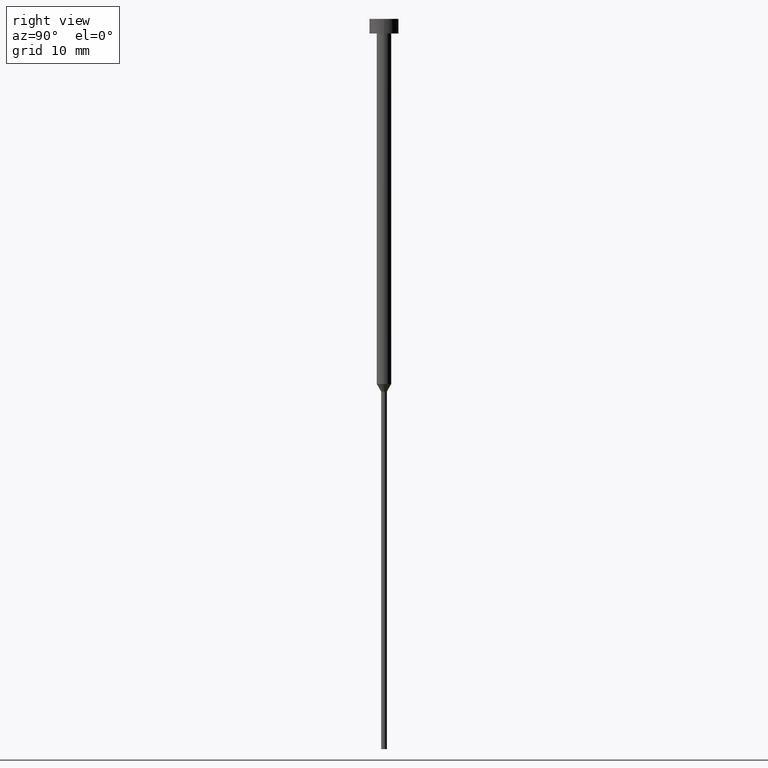
[diagram: clean part render]
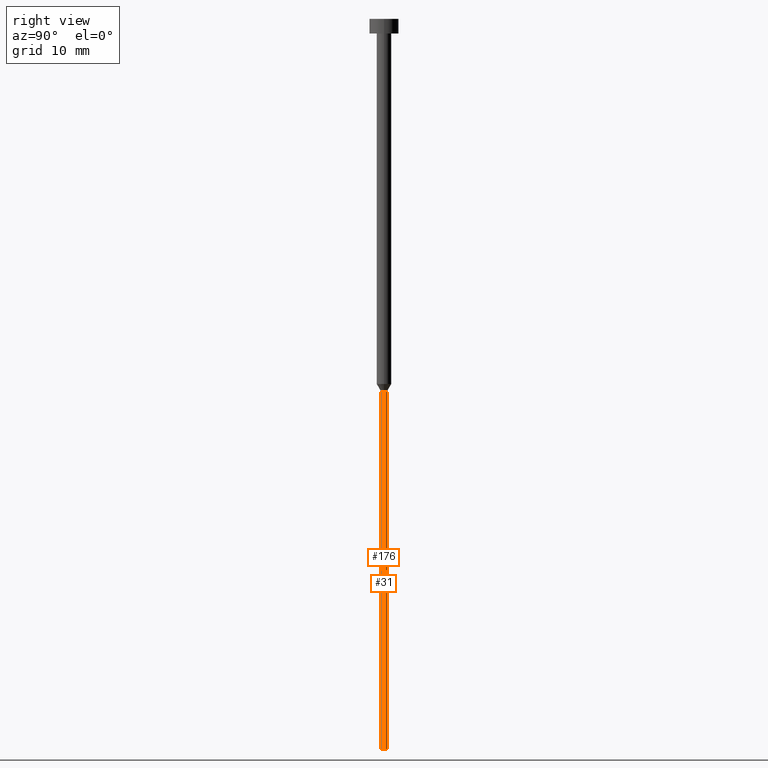
[diagram: same view with one multi-face feature highlighted, each face labeled with its STEP entity id]
A machine part, right view. The highlighted faces form ONE feature: a constant-radius fillet chain: 2 tangent blend faces with common blend radius 0.4 mm. The faces share edges in the B-rep.
Their STEP definitions:
[1] entity #31 (Cylinder):
#2 = ORIENTED_EDGE ( 'NONE', *, *, #65, .F. ) ;
#5 = DIRECTION ( 'NONE',  ( 1.000000000000000000, 0.000000000000000000, 0.000000000000000000 ) ) ;
#30 = EDGE_CURVE ( 'NONE', #311, #168, #203, .T. ) ;
#31 = ADVANCED_FACE ( 'NONE', ( #100 ), #124, .T. ) ;
#44 = DIRECTION ( 'NONE',  ( -0.000000000000000000, -0.000000000000000000, 1.000000000000000000 ) ) ;
#50 = DIRECTION ( 'NONE',  ( 1.000000000000000000, 0.000000000000000000, 0.000000000000000000 ) ) ;
#65 = EDGE_CURVE ( 'NONE', #86, #355, #130, .T. ) ;
#68 = AXIS2_PLACEMENT_3D ( 'NONE', #346, #139, #50 ) ;
#69 = CARTESIAN_POINT ( 'NONE',  ( 0.000000000000000000, 0.000000000000000000, -51.03923048454132783 ) ) ;
#73 = CARTESIAN_POINT ( 'NONE',  ( 0.000000000000000000, 0.000000000000000000, 0.000000000000000000 ) ) ;
#86 = VERTEX_POINT ( 'NONE', #350 ) ;
#100 = FACE_OUTER_BOUND ( 'NONE', #276, .T. ) ;
#111 = CIRCLE ( 'NONE', #68, 0.4000000000000000222 ) ;
#116 = VECTOR ( 'NONE', #208, 1000.000000000000000 ) ;
#124 = CYLINDRICAL_SURFACE ( 'NONE', #338, 0.3999999999999999667 ) ;
#130 = LINE ( 'NONE', #235, #116 ) ;
#139 = DIRECTION ( 'NONE',  ( -0.000000000000000000, -0.000000000000000000, 1.000000000000000000 ) ) ;
#168 = VERTEX_POINT ( 'NONE', #212 ) ;
#173 = ORIENTED_EDGE ( 'NONE', *, *, #249, .T. ) ;
#174 = CARTESIAN_POINT ( 'NONE',  ( 0.3999999999999999667, 0.000000000000000000, -51.03923048454132783 ) ) ;
#175 = DIRECTION ( 'NONE',  ( -0.000000000000000000, -0.000000000000000000, 1.000000000000000000 ) ) ;
#197 = ORIENTED_EDGE ( 'NONE', *, *, #322, .F. ) ;
#200 = DIRECTION ( 'NONE',  ( 1.000000000000000000, 0.000000000000000000, 0.000000000000000000 ) ) ;
#203 = LINE ( 'NONE', #256, #326 ) ;
#206 = CIRCLE ( 'NONE', #210, 0.3999999999999999667 ) ;
#208 = DIRECTION ( 'NONE',  ( -0.000000000000000000, -0.000000000000000000, 1.000000000000000000 ) ) ;
#210 = AXIS2_PLACEMENT_3D ( 'NONE', #69, #44, #5 ) ;
#212 = CARTESIAN_POINT ( 'NONE',  ( -0.3999999999999999667, 4.898587196589412459E-17, -51.03923048454132783 ) ) ;
#223 = CARTESIAN_POINT ( 'NONE',  ( -0.4000000000000000777, 4.898587196589413692E-17, -100.0000000000000000 ) ) ;
#235 = CARTESIAN_POINT ( 'NONE',  ( 0.3999999999999999667, 0.000000000000000000, 0.000000000000000000 ) ) ;
#249 = EDGE_CURVE ( 'NONE', #86, #311, #111, .T. ) ;
#256 = CARTESIAN_POINT ( 'NONE',  ( -0.3999999999999999667, 4.898587196589412459E-17, 0.000000000000000000 ) ) ;
#276 = EDGE_LOOP ( 'NONE', ( #173, #328, #197, #2 ) ) ;
#282 = DIRECTION ( 'NONE',  ( -0.000000000000000000, -0.000000000000000000, 1.000000000000000000 ) ) ;
#311 = VERTEX_POINT ( 'NONE', #223 ) ;
#322 = EDGE_CURVE ( 'NONE', #355, #168, #206, .T. ) ;
#326 = VECTOR ( 'NONE', #282, 1000.000000000000000 ) ;
#328 = ORIENTED_EDGE ( 'NONE', *, *, #30, .T. ) ;
#338 = AXIS2_PLACEMENT_3D ( 'NONE', #73, #175, #200 ) ;
#346 = CARTESIAN_POINT ( 'NONE',  ( 0.000000000000000000, 0.000000000000000000, -100.0000000000000000 ) ) ;
#350 = CARTESIAN_POINT ( 'NONE',  ( 0.4000000000000000222, 0.000000000000000000, -100.0000000000000000 ) ) ;
#355 = VERTEX_POINT ( 'NONE', #174 ) ;
[2] entity #176 (Cylinder):
#6 = ORIENTED_EDGE ( 'NONE', *, *, #65, .T. ) ;
#26 = ORIENTED_EDGE ( 'NONE', *, *, #258, .F. ) ;
#30 = EDGE_CURVE ( 'NONE', #311, #168, #203, .T. ) ;
#62 = EDGE_CURVE ( 'NONE', #311, #86, #294, .T. ) ;
#65 = EDGE_CURVE ( 'NONE', #86, #355, #130, .T. ) ;
#86 = VERTEX_POINT ( 'NONE', #350 ) ;
#114 = ORIENTED_EDGE ( 'NONE', *, *, #30, .F. ) ;
#116 = VECTOR ( 'NONE', #208, 1000.000000000000000 ) ;
#119 = EDGE_LOOP ( 'NONE', ( #114, #202, #6, #26 ) ) ;
#127 = CYLINDRICAL_SURFACE ( 'NONE', #342, 0.3999999999999999667 ) ;
#130 = LINE ( 'NONE', #235, #116 ) ;
#160 = DIRECTION ( 'NONE',  ( 1.000000000000000000, 0.000000000000000000, 0.000000000000000000 ) ) ;
#168 = VERTEX_POINT ( 'NONE', #212 ) ;
#174 = CARTESIAN_POINT ( 'NONE',  ( 0.3999999999999999667, 0.000000000000000000, -51.03923048454132783 ) ) ;
#176 = ADVANCED_FACE ( 'NONE', ( #299 ), #127, .T. ) ;
#180 = DIRECTION ( 'NONE',  ( 1.000000000000000000, 0.000000000000000000, 0.000000000000000000 ) ) ;
#187 = DIRECTION ( 'NONE',  ( -0.000000000000000000, -0.000000000000000000, 1.000000000000000000 ) ) ;
#202 = ORIENTED_EDGE ( 'NONE', *, *, #62, .T. ) ;
#203 = LINE ( 'NONE', #256, #326 ) ;
#204 = DIRECTION ( 'NONE',  ( 1.000000000000000000, 0.000000000000000000, 0.000000000000000000 ) ) ;
#208 = DIRECTION ( 'NONE',  ( -0.000000000000000000, -0.000000000000000000, 1.000000000000000000 ) ) ;
#212 = CARTESIAN_POINT ( 'NONE',  ( -0.3999999999999999667, 4.898587196589412459E-17, -51.03923048454132783 ) ) ;
#223 = CARTESIAN_POINT ( 'NONE',  ( -0.4000000000000000777, 4.898587196589413692E-17, -100.0000000000000000 ) ) ;
#235 = CARTESIAN_POINT ( 'NONE',  ( 0.3999999999999999667, 0.000000000000000000, 0.000000000000000000 ) ) ;
#240 = CARTESIAN_POINT ( 'NONE',  ( 0.000000000000000000, 0.000000000000000000, -100.0000000000000000 ) ) ;
#246 = CARTESIAN_POINT ( 'NONE',  ( 0.000000000000000000, 0.000000000000000000, -51.03923048454132783 ) ) ;
#250 = AXIS2_PLACEMENT_3D ( 'NONE', #240, #266, #180 ) ;
#256 = CARTESIAN_POINT ( 'NONE',  ( -0.3999999999999999667, 4.898587196589412459E-17, 0.000000000000000000 ) ) ;
#258 = EDGE_CURVE ( 'NONE', #168, #355, #304, .T. ) ;
#266 = DIRECTION ( 'NONE',  ( -0.000000000000000000, -0.000000000000000000, 1.000000000000000000 ) ) ;
#267 = CARTESIAN_POINT ( 'NONE',  ( 0.000000000000000000, 0.000000000000000000, 0.000000000000000000 ) ) ;
#282 = DIRECTION ( 'NONE',  ( -0.000000000000000000, -0.000000000000000000, 1.000000000000000000 ) ) ;
#294 = CIRCLE ( 'NONE', #250, 0.4000000000000000222 ) ;
#299 = FACE_OUTER_BOUND ( 'NONE', #119, .T. ) ;
#304 = CIRCLE ( 'NONE', #349, 0.3999999999999999667 ) ;
#311 = VERTEX_POINT ( 'NONE', #223 ) ;
#326 = VECTOR ( 'NONE', #282, 1000.000000000000000 ) ;
#342 = AXIS2_PLACEMENT_3D ( 'NONE', #267, #348, #160 ) ;
#348 = DIRECTION ( 'NONE',  ( -0.000000000000000000, -0.000000000000000000, 1.000000000000000000 ) ) ;
#349 = AXIS2_PLACEMENT_3D ( 'NONE', #246, #187, #204 ) ;
#350 = CARTESIAN_POINT ( 'NONE',  ( 0.4000000000000000222, 0.000000000000000000, -100.0000000000000000 ) ) ;
#355 = VERTEX_POINT ( 'NONE', #174 ) ;